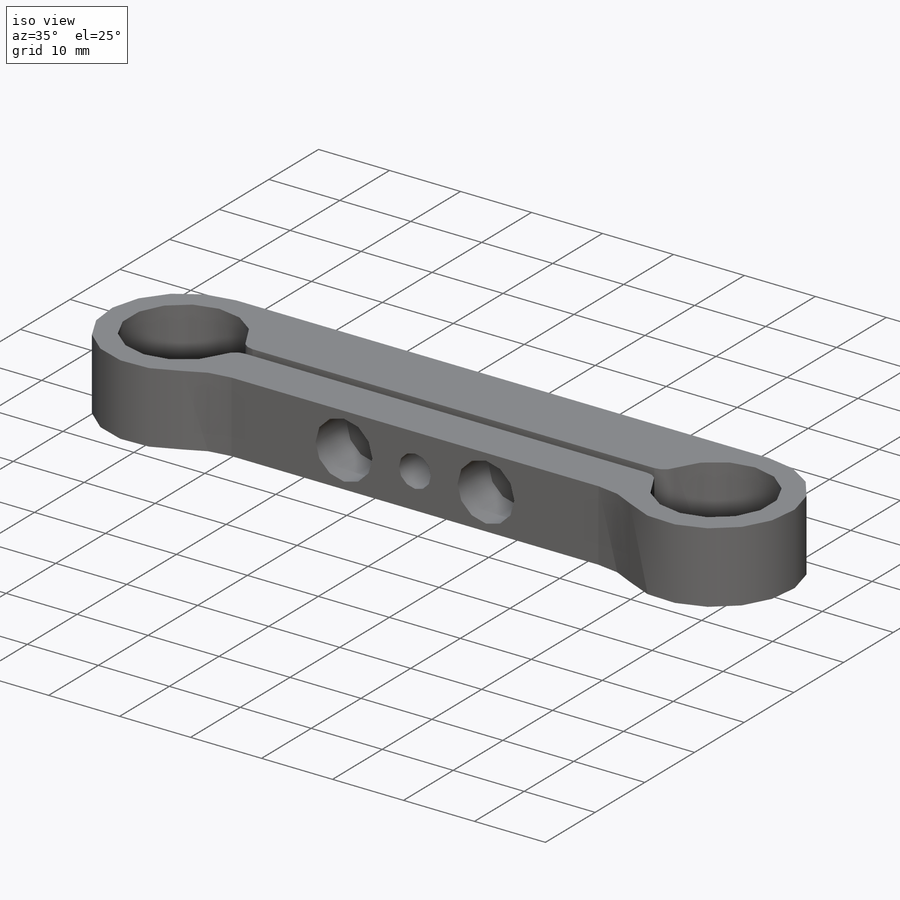
[diagram: iso view]
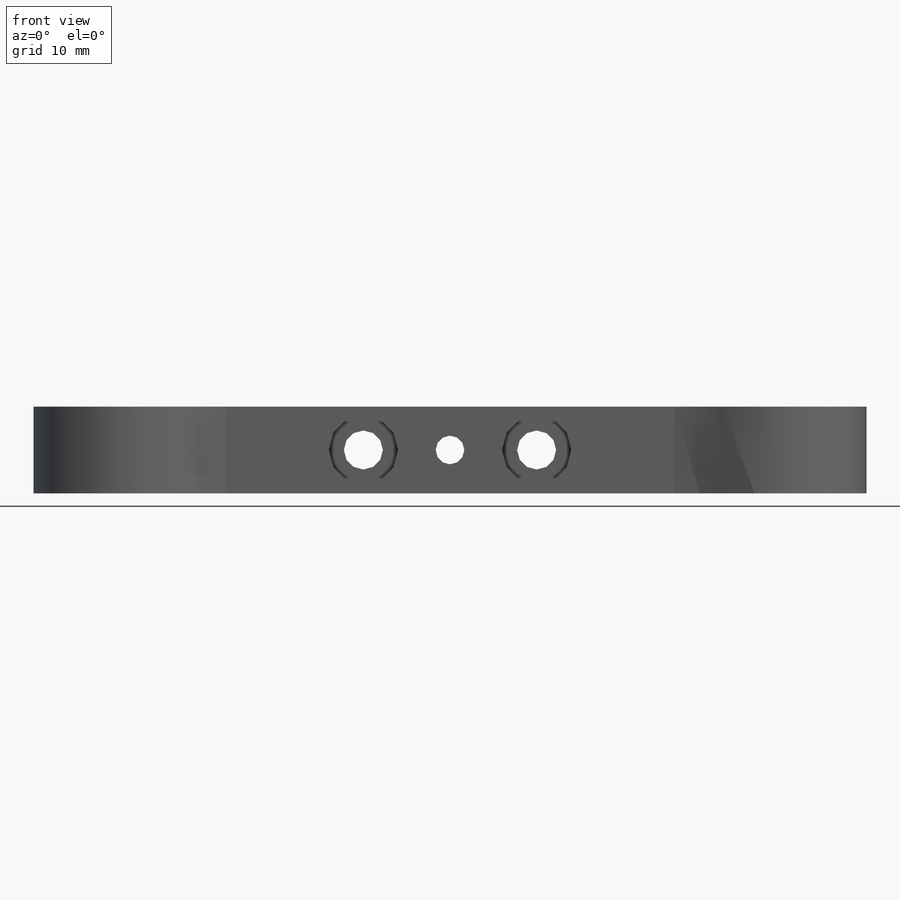
[diagram: front view]
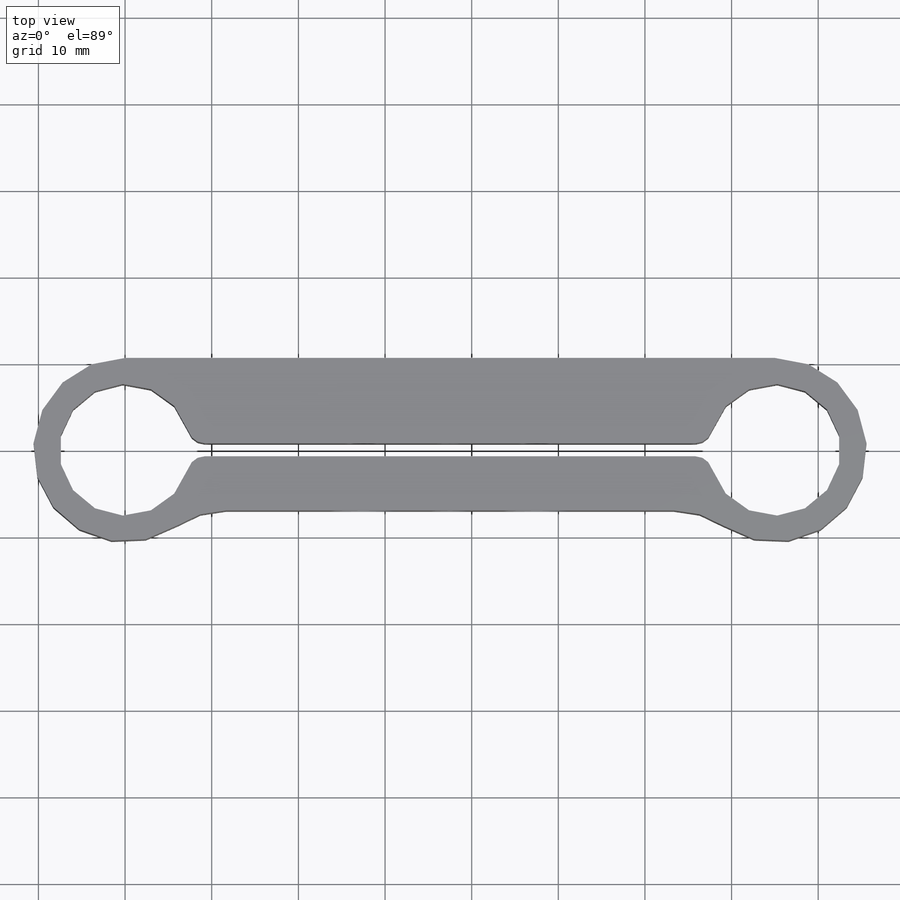
[diagram: top view]
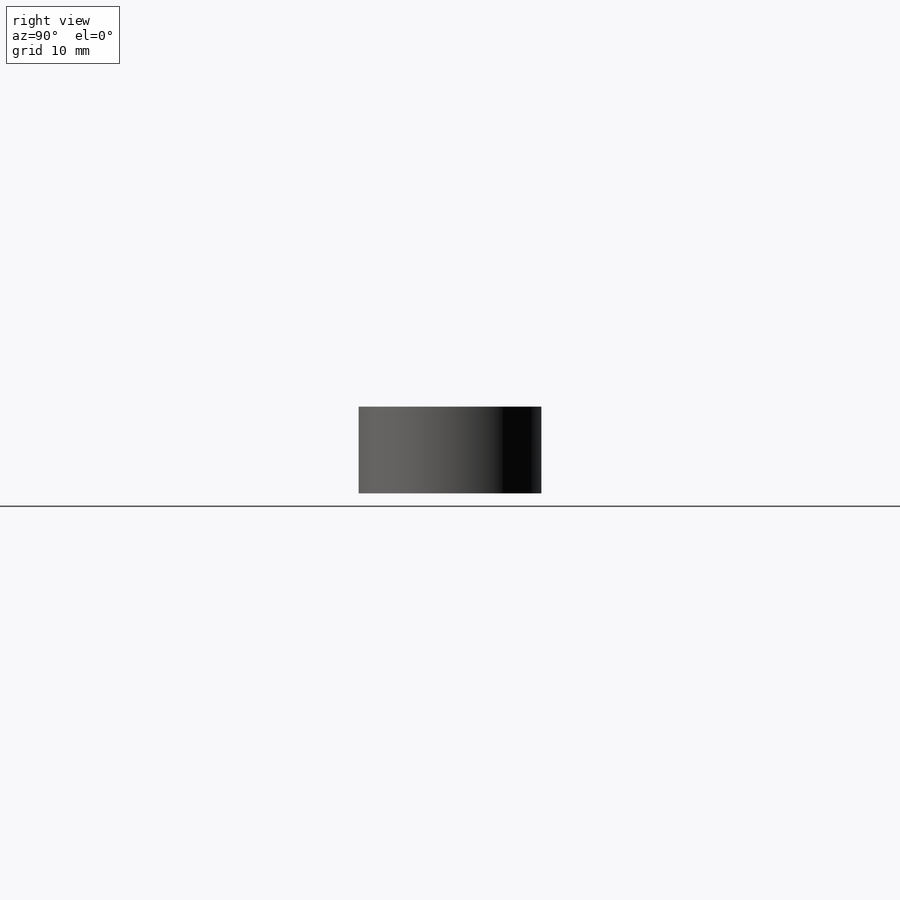
[diagram: right view]
SOLIDWORKS PART (.sldprt)
format: sldprt  version: not decoded by parser v0  size: 357,888 bytes
history: native  units: mm
features: sketch x11, hole x4, plane x3, fillet x2, material x1, extrude x1, thread x1 (+8 scaffold rows collapsed)
feature tree (31):
  scaffold x8  (default folders/planes/origin — collapsed)
  material  "Материал <не указан>"
  plane  "Спереди"
  plane  "Сверху"
  plane  "Справа"
  sketch  "Эскиз1"  dims[c1.D1=15.2mm c1.D4=14.0mm c1.D3=75.0mm c2.D4=7.0mm c2.D5=1.5mm c2.D2=3.0mm]
  extrude  "Бобышка-Вытянуть1"  Depth=10mm
  sketch  "Эскиз2"  dims[D1=20.0mm]
  hole  "Диаметр отверстия Ø8.0 (8)1"  [1 undecoded]
  sketch  "Эскиз4"
  sketch  "Эскиз3"  dims[hole-wizard template sketch: 59 standard entries collapsed; hole parameters kept: c18.Диаметр сквозного отверстия=8.0mm c18.Глубина сквозного отверстия=6.25mm]
  hole  "Отверстие с зазором M41"  [1 undecoded]
  sketch  "Эскиз6"
  sketch  "Эскиз5"  dims[hole-wizard template sketch: 47 standard entries collapsed; hole parameters kept: c15.Глубина отверстия=11.0mm c15.D3=~14.816244mm c15.Угол заточки сверла=118.0deg]
  hole  "Отверстие с зазором M42"  [1 undecoded]
  sketch  "Эскиз8"
  sketch  "Эскиз7"  dims[hole-wizard template sketch: 60 standard entries collapsed; hole parameters kept: c18.Глубина сквозного отверстия=6.25mm]
  hole  "Отверстие обработанное метчиком M4x0.72"  [1 undecoded]
  sketch  "Эскиз10"
  sketch  "Эскиз9"  dims[hole-wizard template sketch: 60 standard entries collapsed; hole parameters kept: c18.Глубина проходного сверла=9.85mm]
  thread  "Отверстие резьбы3"  Diameter=4mm  [1 undecoded]
  fillet  "Скругление2"  Radius=10mm
  fillet  "Скругление3"  Radius=2mm
  sketch  "Эскиз11"
decode coverage: 10 of 19 modeling features carry decoded parameters
note: ~ marks probable driven/reference dimensions
note: 5 parameter values undecoded
summary: no parameter record found for 4 features
note: suppression state not decoded; provenance and decode notes live in map.json
